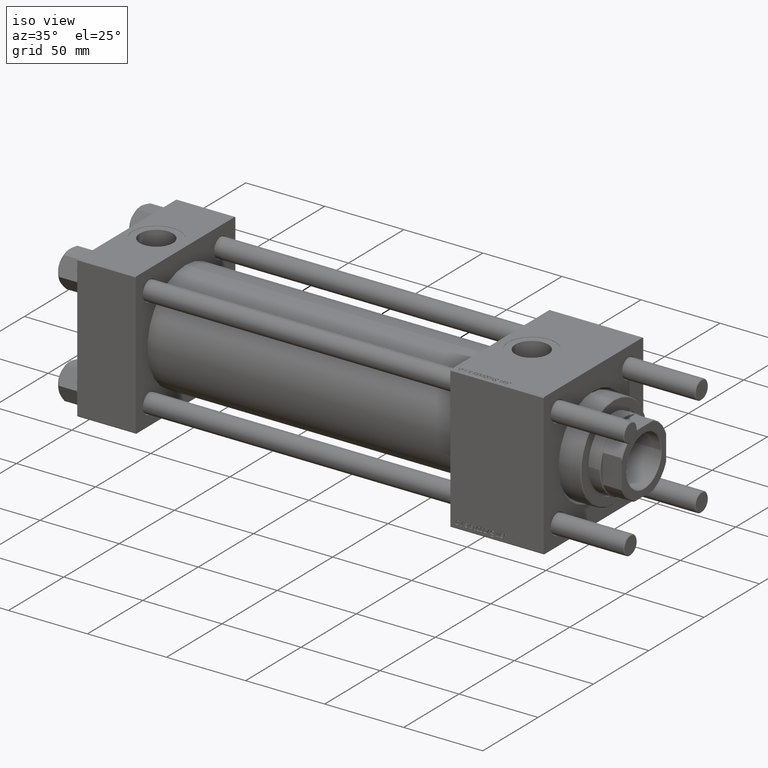
[diagram: clean part render]
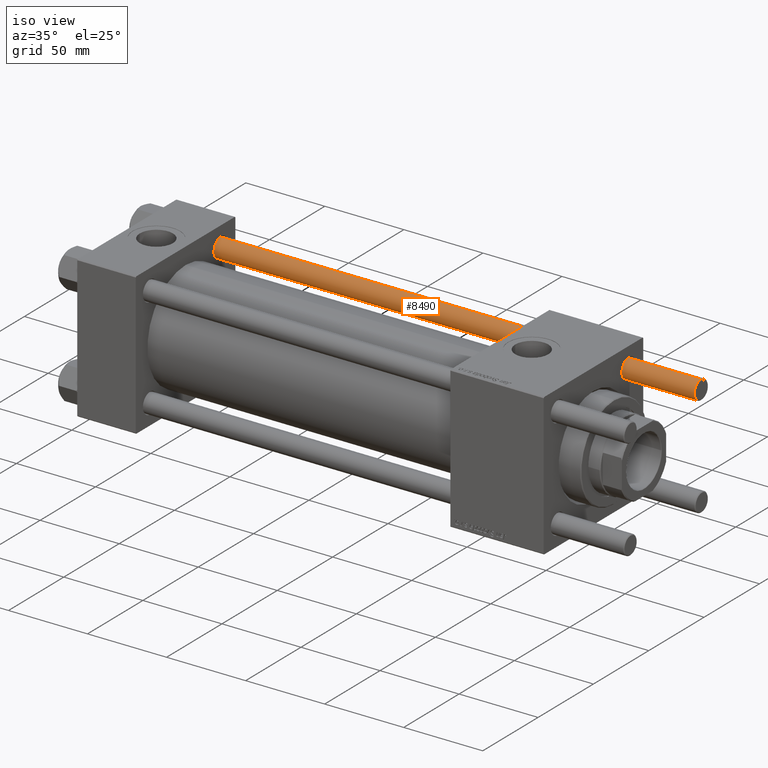
[diagram: same view with one face highlighted and labeled with its STEP entity id]
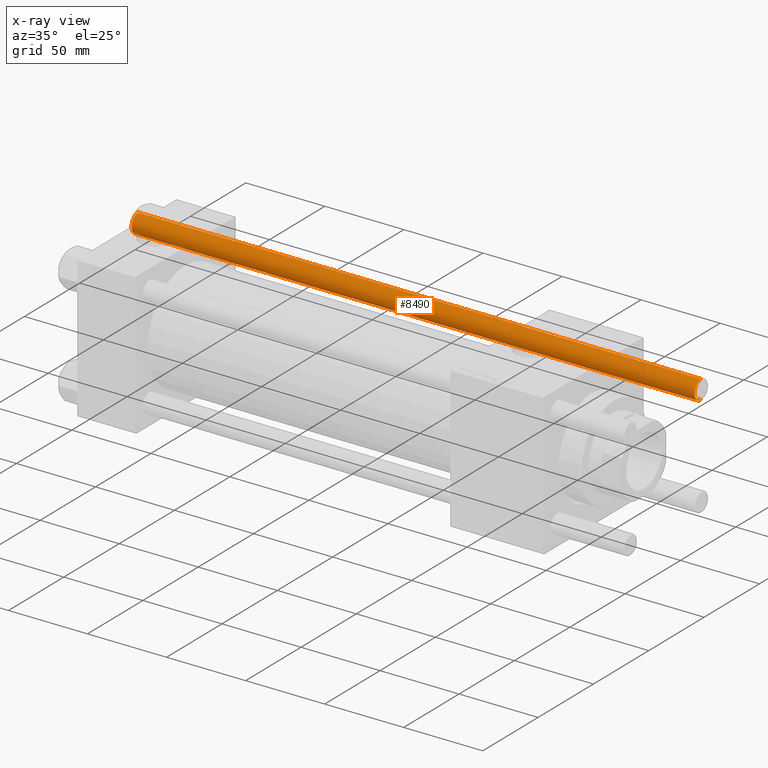
[diagram: x-ray of the same camera — body ghosted, the highlighted face saturated]
A machine part, iso view. The second image highlights one B-rep face of the part: STEP entity #8490.
The next image is the same camera in x-ray: the body ghosted, the highlighted face saturated — about 0% of this face is hidden behind the body in this view.
In plain terms, the highlighted cylindrical surface (edge-blend (fillet) strip) has radius 6 mm, axis along (1, -0, -0).
Its self-contained STEP definition (entity closure, byte-faithful):
#620 = ORIENTED_EDGE ( 'NONE', *, *, #10227, .T. ) ;
#743 = CARTESIAN_POINT ( 'NONE',  ( 0.000000000000000000, 0.000000000000000000, 0.5000000000001114664 ) ) ;
#837 = CIRCLE ( 'NONE', #37474, 6.000000000000000888 ) ;
#2674 = CARTESIAN_POINT ( 'NONE',  ( -6.000000000000000888, 0.000000000000000000, 357.0000000000000000 ) ) ;
#5412 = VERTEX_POINT ( 'NONE', #17607 ) ;
#5599 = FACE_OUTER_BOUND ( 'NONE', #15318, .T. ) ;
#8004 = DIRECTION ( 'NONE',  ( -0.000000000000000000, -0.000000000000000000, 1.000000000000000000 ) ) ;
#8165 = DIRECTION ( 'NONE',  ( 1.000000000000000000, 0.000000000000000000, 0.000000000000000000 ) ) ;
#8485 = DIRECTION ( 'NONE',  ( -0.000000000000000000, -0.000000000000000000, -1.000000000000000000 ) ) ;
#8490 = ADVANCED_FACE ( 'NONE', ( #5599 ), #36250, .T. ) ;
#10227 = EDGE_CURVE ( 'NONE', #24799, #5412, #40097, .T. ) ;
#12402 = LINE ( 'NONE', #2674, #17721 ) ;
#13603 = EDGE_CURVE ( 'NONE', #24799, #24223, #17084, .T. ) ;
#13625 = DIRECTION ( 'NONE',  ( 1.000000000000000000, 0.000000000000000000, 0.000000000000000000 ) ) ;
#14435 = EDGE_CURVE ( 'NONE', #28444, #24223, #837, .T. ) ;
#15318 = EDGE_LOOP ( 'NONE', ( #51095, #620, #43342, #26226 ) ) ;
#15407 = AXIS2_PLACEMENT_3D ( 'NONE', #47431, #38261, #8165 ) ;
#16269 = CARTESIAN_POINT ( 'NONE',  ( 6.000000000000000888, 7.347880794884120722E-16, 356.5000000000001137 ) ) ;
#17084 = LINE ( 'NONE', #47739, #52086 ) ;
#17607 = CARTESIAN_POINT ( 'NONE',  ( -6.000000000000000888, 0.000000000000000000, 356.5000000000001137 ) ) ;
#17721 = VECTOR ( 'NONE', #38473, 1000.000000000000000 ) ;
#24223 = VERTEX_POINT ( 'NONE', #32721 ) ;
#24799 = VERTEX_POINT ( 'NONE', #16269 ) ;
#26048 = CARTESIAN_POINT ( 'NONE',  ( -6.000000000000000888, 0.000000000000000000, 0.5000000000001114664 ) ) ;
#26226 = ORIENTED_EDGE ( 'NONE', *, *, #14435, .T. ) ;
#28444 = VERTEX_POINT ( 'NONE', #26048 ) ;
#31956 = DIRECTION ( 'NONE',  ( -0.000000000000000000, -0.000000000000000000, -1.000000000000000000 ) ) ;
#32721 = CARTESIAN_POINT ( 'NONE',  ( 6.000000000000000888, 7.347880794884120722E-16, 0.5000000000001114664 ) ) ;
#36250 = CYLINDRICAL_SURFACE ( 'NONE', #44652, 6.000000000000000888 ) ;
#37474 = AXIS2_PLACEMENT_3D ( 'NONE', #743, #8004, #13625 ) ;
#38261 = DIRECTION ( 'NONE',  ( 0.000000000000000000, 0.000000000000000000, -1.000000000000000000 ) ) ;
#38473 = DIRECTION ( 'NONE',  ( -0.000000000000000000, -0.000000000000000000, -1.000000000000000000 ) ) ;
#40097 = CIRCLE ( 'NONE', #15407, 6.000000000000000888 ) ;
#43342 = ORIENTED_EDGE ( 'NONE', *, *, #49956, .T. ) ;
#44652 = AXIS2_PLACEMENT_3D ( 'NONE', #53734, #31956, #46856 ) ;
#46856 = DIRECTION ( 'NONE',  ( -1.000000000000000000, 0.000000000000000000, 0.000000000000000000 ) ) ;
#47431 = CARTESIAN_POINT ( 'NONE',  ( 0.000000000000000000, 0.000000000000000000, 356.5000000000001137 ) ) ;
#47739 = CARTESIAN_POINT ( 'NONE',  ( 6.000000000000000888, 7.347880794884120722E-16, 357.0000000000000000 ) ) ;
#49956 = EDGE_CURVE ( 'NONE', #5412, #28444, #12402, .T. ) ;
#51095 = ORIENTED_EDGE ( 'NONE', *, *, #13603, .F. ) ;
#52086 = VECTOR ( 'NONE', #8485, 1000.000000000000000 ) ;
#53734 = CARTESIAN_POINT ( 'NONE',  ( 0.000000000000000000, 0.000000000000000000, 357.0000000000000000 ) ) ;